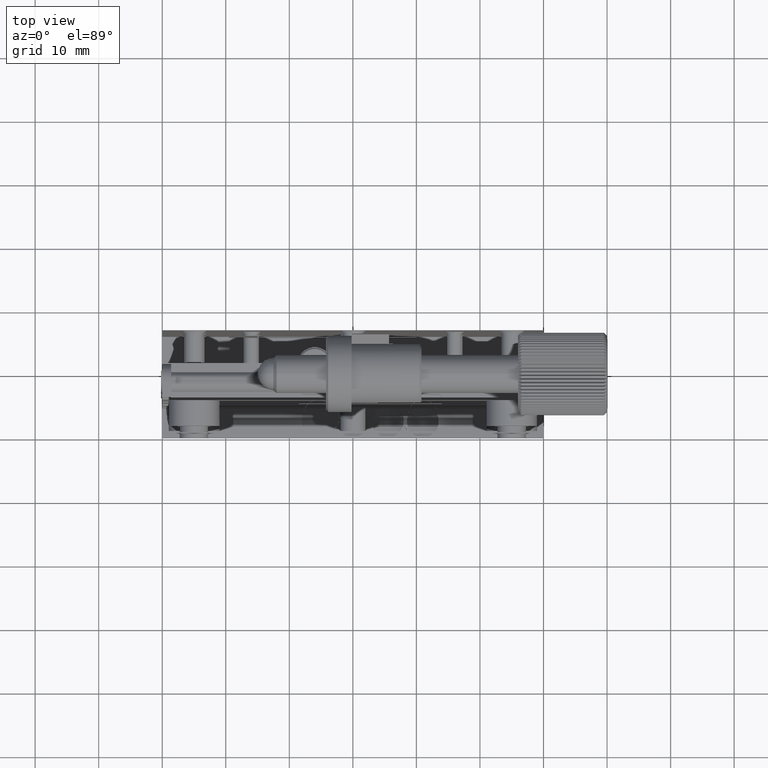
[diagram: clean part render]
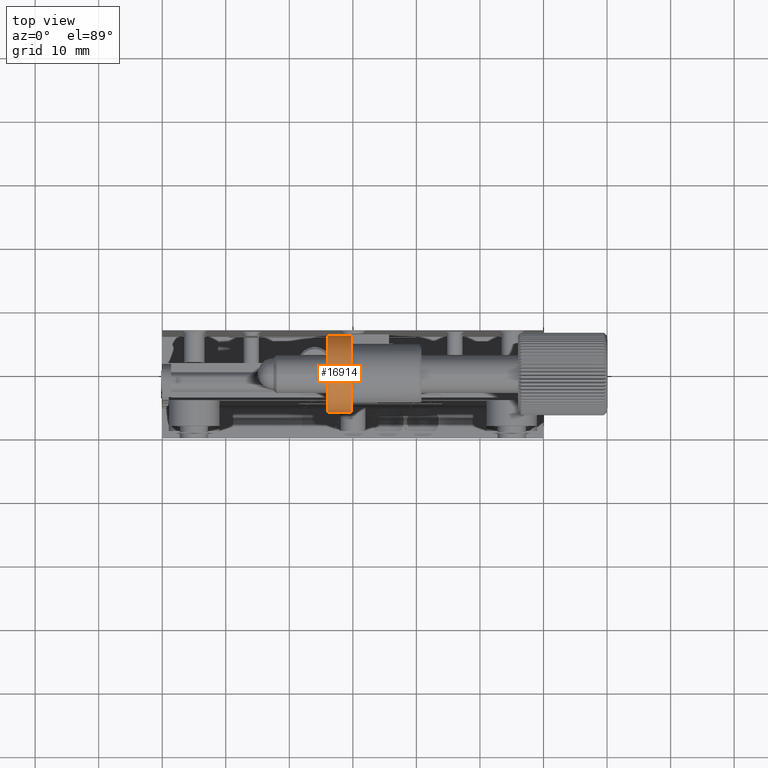
[diagram: same view with one face highlighted and labeled with its STEP entity id]
A machine part, top view. The second image highlights one B-rep face of the part: STEP entity #16914.
In plain terms, the highlighted cylindrical surface (bore or boss wall) has radius 6 mm, axis along (-1, 0, 0).
Its self-contained STEP definition (entity closure, byte-faithful):
#187 = EDGE_CURVE ( 'NONE', #9794, #9794, #8265, .T. ) ;
#419 = ORIENTED_EDGE ( 'NONE', *, *, #187, .F. ) ;
#2493 = AXIS2_PLACEMENT_3D ( 'NONE', #12759, #7531, #15415 ) ;
#2704 = CARTESIAN_POINT ( 'NONE',  ( -3.899999999987358024, 8.900000000000005684, 48.00000000000181899 ) ) ;
#3868 = EDGE_LOOP ( 'NONE', ( #10132 ) ) ;
#4597 = DIRECTION ( 'NONE',  ( -4.336808689978204265E-16, -1.000000000000000000, 0.000000000000000000 ) ) ;
#5175 = DIRECTION ( 'NONE',  ( -1.000000000000000000, 4.357087879783537211E-16, -1.258513682473421960E-17 ) ) ;
#7374 = AXIS2_PLACEMENT_3D ( 'NONE', #10019, #7443, #4597 ) ;
#7443 = DIRECTION ( 'NONE',  ( -1.000000000000000000, 4.357087879783537211E-16, 2.355493559161908644E-17 ) ) ;
#7531 = DIRECTION ( 'NONE',  ( -1.000000000000000000, 4.357087879783537211E-16, 2.355493559161908644E-17 ) ) ;
#8265 = CIRCLE ( 'NONE', #16467, 6.000000000001809219 ) ;
#8509 = CIRCLE ( 'NONE', #7374, 5.999999999949936047 ) ;
#9044 = CYLINDRICAL_SURFACE ( 'NONE', #2493, 5.999999999949936047 ) ;
#9296 = EDGE_CURVE ( 'NONE', #13165, #13165, #8509, .T. ) ;
#9794 = VERTEX_POINT ( 'NONE', #2704 ) ;
#10019 = CARTESIAN_POINT ( 'NONE',  ( -0.2000000000000022593, 8.900000000000002132, 42.00000000000000711 ) ) ;
#10132 = ORIENTED_EDGE ( 'NONE', *, *, #9296, .T. ) ;
#10591 = CARTESIAN_POINT ( 'NONE',  ( -0.2000000000000048683, 2.900000000050065641, 42.00000000000000711 ) ) ;
#12164 = EDGE_LOOP ( 'NONE', ( #419 ) ) ;
#12759 = CARTESIAN_POINT ( 'NONE',  ( 10.80000000002410054, 8.899999999999996803, 42.00000000000000711 ) ) ;
#13165 = VERTEX_POINT ( 'NONE', #10591 ) ;
#14415 = DIRECTION ( 'NONE',  ( 0.000000000000000000, 2.891205793293806635E-16, 1.000000000000000000 ) ) ;
#15415 = DIRECTION ( 'NONE',  ( -5.782411586637605358E-16, -1.000000000000000000, 0.000000000000000000 ) ) ;
#15998 = CARTESIAN_POINT ( 'NONE',  ( -3.899999999987358024, 8.900000000000003908, 42.00000000000000711 ) ) ;
#16467 = AXIS2_PLACEMENT_3D ( 'NONE', #15998, #5175, #14415 ) ;
#16914 = ADVANCED_FACE ( 'NONE', ( #17111, #17194 ), #9044, .T. ) ;
#17111 = FACE_OUTER_BOUND ( 'NONE', #12164, .T. ) ;
#17194 = FACE_OUTER_BOUND ( 'NONE', #3868, .T. ) ;